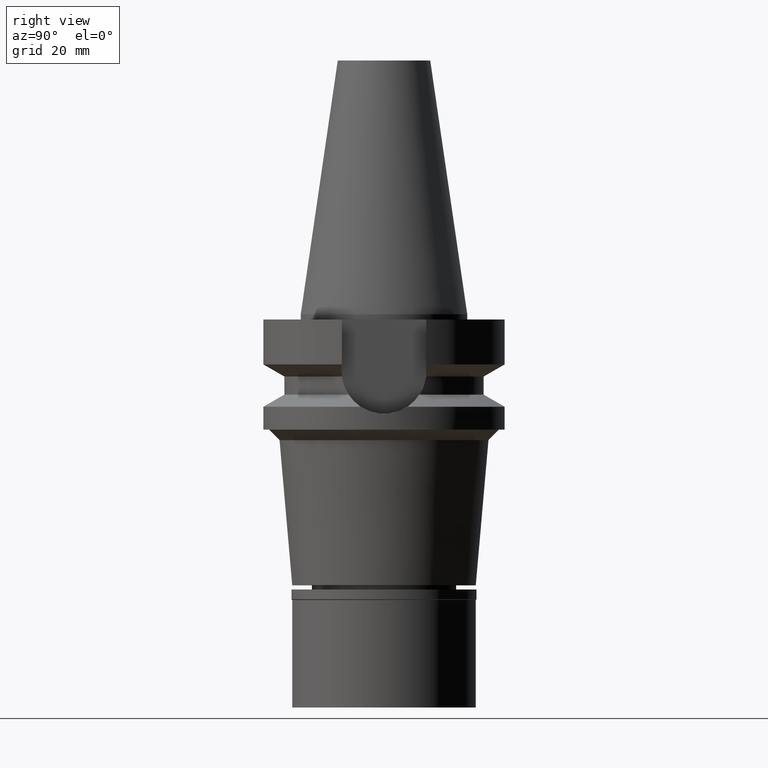
[diagram: clean part render]
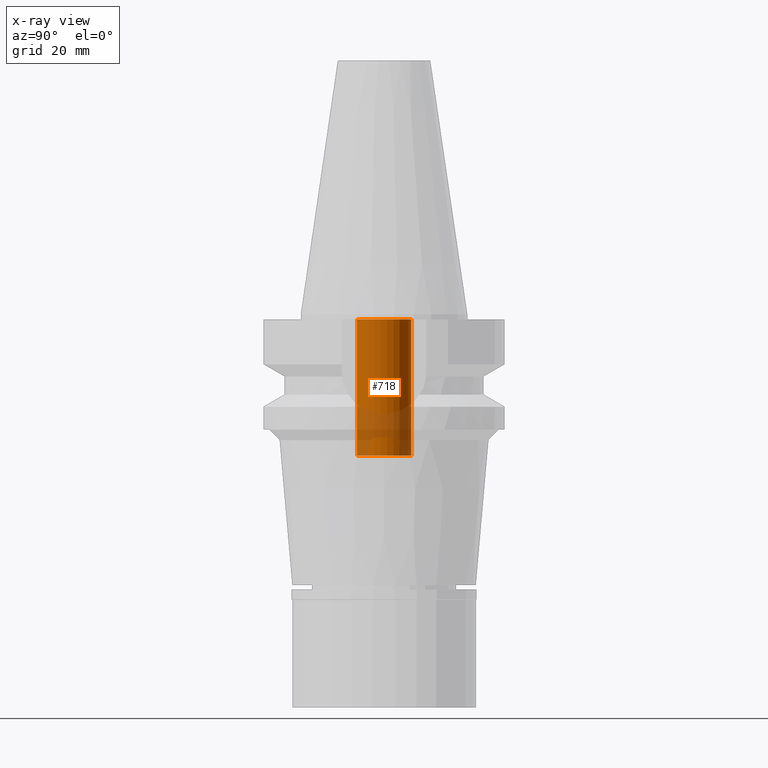
[diagram: x-ray — body ghosted, one internal face saturated and labeled with its STEP entity id]
A machine part, right view, then the same camera in x-ray: the body is ghosted and one INTERNAL B-rep face — a face not visible from any outside direction — is saturated and labeled: STEP entity #718.
In plain terms, the highlighted cylindrical surface (edge-blend (fillet) strip) has radius 5.2 mm, axis along (0, 0, -1).
Its self-contained STEP definition (entity closure, byte-faithful):
#97 = CIRCLE ( 'NONE', #1024, 5.200000000000000178 ) ;
#149 = EDGE_CURVE ( 'NONE', #876, #1136, #1606, .T. ) ;
#185 = DIRECTION ( 'NONE',  ( 0.0000000000000000000, 0.0000000000000000000, 1.000000000000000000 ) ) ;
#286 = ORIENTED_EDGE ( 'NONE', *, *, #3054, .T. ) ;
#346 = AXIS2_PLACEMENT_3D ( 'NONE', #2154, #457, #1884 ) ;
#457 = DIRECTION ( 'NONE',  ( 0.0000000000000000000, 0.0000000000000000000, -1.000000000000000000 ) ) ;
#489 = VERTEX_POINT ( 'NONE', #2234 ) ;
#541 = CARTESIAN_POINT ( 'NONE',  ( 0.0000000000000000000, -5.200000000000000178, -27.00000000000000000 ) ) ;
#564 = ORIENTED_EDGE ( 'NONE', *, *, #149, .T. ) ;
#614 = CARTESIAN_POINT ( 'NONE',  ( 0.0000000000000000000, 0.0000000000000000000, 0.0000000000000000000 ) ) ;
#690 = CARTESIAN_POINT ( 'NONE',  ( 0.0000000000000000000, -5.200000000000000178, -27.00000000000000000 ) ) ;
#718 = ADVANCED_FACE ( 'NONE', ( #1562 ), #2047, .F. ) ;
#749 = CARTESIAN_POINT ( 'NONE',  ( 0.0000000000000000000, 5.200000000000000178, -27.00000000000000000 ) ) ;
#872 = DIRECTION ( 'NONE',  ( 0.0000000000000000000, -1.000000000000000000, 0.0000000000000000000 ) ) ;
#876 = VERTEX_POINT ( 'NONE', #541 ) ;
#914 = CARTESIAN_POINT ( 'NONE',  ( 0.0000000000000000000, 0.0000000000000000000, -1.000000000000000000 ) ) ;
#934 = EDGE_LOOP ( 'NONE', ( #1735, #564, #286, #1684 ) ) ;
#1024 = AXIS2_PLACEMENT_3D ( 'NONE', #914, #185, #1847 ) ;
#1130 = DIRECTION ( 'NONE',  ( 0.0000000000000000000, 0.0000000000000000000, -1.000000000000000000 ) ) ;
#1134 = VECTOR ( 'NONE', #1356, 1000.000000000000000 ) ;
#1136 = VERTEX_POINT ( 'NONE', #1477 ) ;
#1356 = DIRECTION ( 'NONE',  ( 0.0000000000000000000, 0.0000000000000000000, 1.000000000000000000 ) ) ;
#1477 = CARTESIAN_POINT ( 'NONE',  ( 0.0000000000000000000, -5.200000000000000178, -1.000000000000000000 ) ) ;
#1524 = VECTOR ( 'NONE', #1910, 1000.000000000000000 ) ;
#1562 = FACE_OUTER_BOUND ( 'NONE', #934, .T. ) ;
#1606 = LINE ( 'NONE', #690, #1134 ) ;
#1669 = AXIS2_PLACEMENT_3D ( 'NONE', #614, #1130, #872 ) ;
#1684 = ORIENTED_EDGE ( 'NONE', *, *, #2116, .F. ) ;
#1735 = ORIENTED_EDGE ( 'NONE', *, *, #2013, .T. ) ;
#1847 = DIRECTION ( 'NONE',  ( 0.0000000000000000000, -1.000000000000000000, 0.0000000000000000000 ) ) ;
#1884 = DIRECTION ( 'NONE',  ( 0.0000000000000000000, 1.000000000000000000, 0.0000000000000000000 ) ) ;
#1899 = LINE ( 'NONE', #749, #1524 ) ;
#1910 = DIRECTION ( 'NONE',  ( 0.0000000000000000000, 0.0000000000000000000, 1.000000000000000000 ) ) ;
#2013 = EDGE_CURVE ( 'NONE', #489, #876, #2617, .T. ) ;
#2047 = CYLINDRICAL_SURFACE ( 'NONE', #1669, 5.200000000000000178 ) ;
#2116 = EDGE_CURVE ( 'NONE', #489, #2788, #1899, .T. ) ;
#2154 = CARTESIAN_POINT ( 'NONE',  ( 0.0000000000000000000, 0.0000000000000000000, -27.00000000000000000 ) ) ;
#2205 = CARTESIAN_POINT ( 'NONE',  ( 0.0000000000000000000, 5.200000000000000178, -1.000000000000000000 ) ) ;
#2234 = CARTESIAN_POINT ( 'NONE',  ( 0.0000000000000000000, 5.200000000000000178, -27.00000000000000000 ) ) ;
#2617 = CIRCLE ( 'NONE', #346, 5.200000000000000178 ) ;
#2788 = VERTEX_POINT ( 'NONE', #2205 ) ;
#3054 = EDGE_CURVE ( 'NONE', #1136, #2788, #97, .T. ) ;